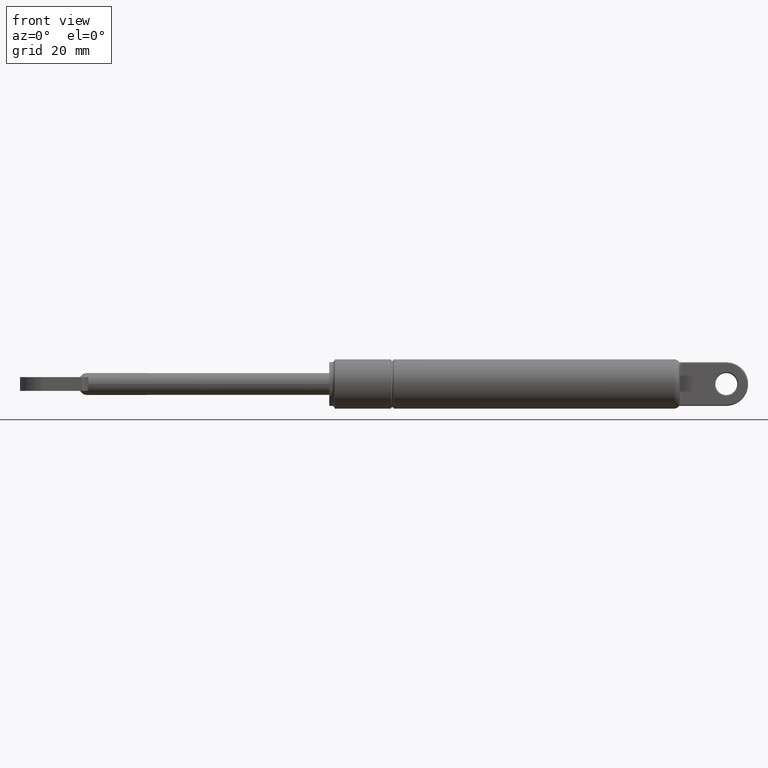
[diagram: clean part render]
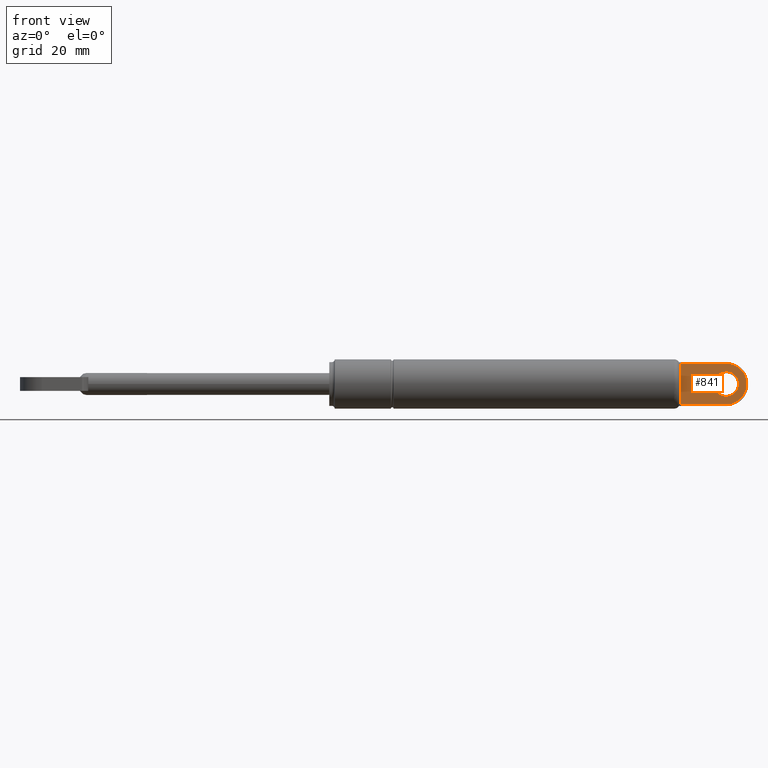
[diagram: same view with one face highlighted and labeled with its STEP entity id]
A machine part, front view. The second image highlights one B-rep face of the part: STEP entity #841.
In plain terms, the highlighted planar face has unit normal (0, -1, 0).
Its self-contained STEP definition (entity closure, byte-faithful):
#57=B_SPLINE_CURVE_WITH_KNOTS('',3,(#1295,#1296,#1297,#1298),
 .UNSPECIFIED.,.F.,.F.,(4,4),(-0.458753506146986,-0.33794685979161),
 .UNSPECIFIED.);
#58=B_SPLINE_CURVE_WITH_KNOTS('',3,(#1302,#1303,#1304,#1305),
 .UNSPECIFIED.,.F.,.F.,(4,4),(-0.120806646377569,-1.11022302462516E-16),
 .UNSPECIFIED.);
#86=LINE('',#1293,#119);
#87=LINE('',#1300,#120);
#88=LINE('',#1307,#121);
#119=VECTOR('',#1033,16.7442382770954);
#120=VECTOR('',#1034,12.6491106406735);
#121=VECTOR('',#1035,16.7442382772499);
#150=PLANE('',#909);
#195=FACE_BOUND('',#284,.T.);
#220=FACE_OUTER_BOUND('',#283,.T.);
#283=EDGE_LOOP('',(#617,#618,#619,#620,#621,#622));
#284=EDGE_LOOP('',(#623));
#363=CIRCLE('',#908,4.5);
#364=CIRCLE('',#910,7.50000000000001);
#421=VERTEX_POINT('',#1288);
#422=VERTEX_POINT('',#1291);
#423=VERTEX_POINT('',#1292);
#424=VERTEX_POINT('',#1294);
#425=VERTEX_POINT('',#1299);
#426=VERTEX_POINT('',#1301);
#427=VERTEX_POINT('',#1306);
#500=EDGE_CURVE('',#421,#421,#363,.T.);
#501=EDGE_CURVE('',#422,#423,#86,.T.);
#502=EDGE_CURVE('',#424,#422,#57,.T.);
#503=EDGE_CURVE('',#425,#424,#87,.T.);
#504=EDGE_CURVE('',#426,#425,#58,.T.);
#505=EDGE_CURVE('',#427,#426,#88,.T.);
#506=EDGE_CURVE('',#423,#427,#364,.T.);
#617=ORIENTED_EDGE('',*,*,#501,.F.);
#618=ORIENTED_EDGE('',*,*,#502,.F.);
#619=ORIENTED_EDGE('',*,*,#503,.F.);
#620=ORIENTED_EDGE('',*,*,#504,.F.);
#621=ORIENTED_EDGE('',*,*,#505,.F.);
#622=ORIENTED_EDGE('',*,*,#506,.F.);
#623=ORIENTED_EDGE('',*,*,#500,.F.);
#841=ADVANCED_FACE('',(#220,#195),#150,.T.);
#908=AXIS2_PLACEMENT_3D('',#1289,#1029,#1030);
#909=AXIS2_PLACEMENT_3D('',#1290,#1031,#1032);
#910=AXIS2_PLACEMENT_3D('',#1308,#1036,#1037);
#1029=DIRECTION('center_axis',(0.,-1.,0.));
#1030=DIRECTION('ref_axis',(1.,0.,0.));
#1031=DIRECTION('center_axis',(0.,-1.,0.));
#1032=DIRECTION('ref_axis',(0.,0.,-1.));
#1033=DIRECTION('',(1.,0.,1.30614473485313E-16));
#1034=DIRECTION('',(0.,0.,1.));
#1035=DIRECTION('',(-1.,0.,1.30614473485313E-16));
#1036=DIRECTION('center_axis',(0.,1.,0.));
#1037=DIRECTION('ref_axis',(1.,0.,4.97780822730595E-16));
#1288=CARTESIAN_POINT('',(140.496093690394,-2.5,3.76809911095922E-15));
#1289=CARTESIAN_POINT('Origin',(144.996093690394,-2.5,4.31919017057553E-15));
#1290=CARTESIAN_POINT('Origin',(138.242238212688,-2.5,1.20940107357813E-15));
#1291=CARTESIAN_POINT('',(128.251855413298,-2.5,7.49999999982591));
#1292=CARTESIAN_POINT('',(144.996093690394,-2.5,7.50000000000001));
#1293=CARTESIAN_POINT('',(133.119165951541,-2.5,7.5));
#1294=CARTESIAN_POINT('',(128.496093690394,-2.5,6.32455532033677));
#1295=CARTESIAN_POINT('Ctrl Pts',(128.496093690394,-2.5,6.32455532033677));
#1296=CARTESIAN_POINT('Ctrl Pts',(128.496093690394,-2.5,6.72724414152136));
#1297=CARTESIAN_POINT('Ctrl Pts',(128.412952168734,-2.5,7.13150224897532));
#1298=CARTESIAN_POINT('Ctrl Pts',(128.250523258087,-2.5,7.49941186085851));
#1299=CARTESIAN_POINT('',(128.496093690394,-2.5,-6.32455532033677));
#1300=CARTESIAN_POINT('',(128.496093690394,-2.5,2.25));
#1301=CARTESIAN_POINT('',(128.251855413144,-2.5,-7.5));
#1302=CARTESIAN_POINT('Ctrl Pts',(128.250523257998,-2.5,-7.49941186106128));
#1303=CARTESIAN_POINT('Ctrl Pts',(128.412952168704,-2.5,-7.13150224912385));
#1304=CARTESIAN_POINT('Ctrl Pts',(128.496093690394,-2.5,-6.72724414159533));
#1305=CARTESIAN_POINT('Ctrl Pts',(128.496093690394,-2.5,-6.32455532033677));
#1306=CARTESIAN_POINT('',(144.996093690394,-2.5,-7.5));
#1307=CARTESIAN_POINT('',(141.619165951541,-2.5,-7.5));
#1308=CARTESIAN_POINT('Origin',(144.996093690394,-2.5,-4.31919017057553E-15));